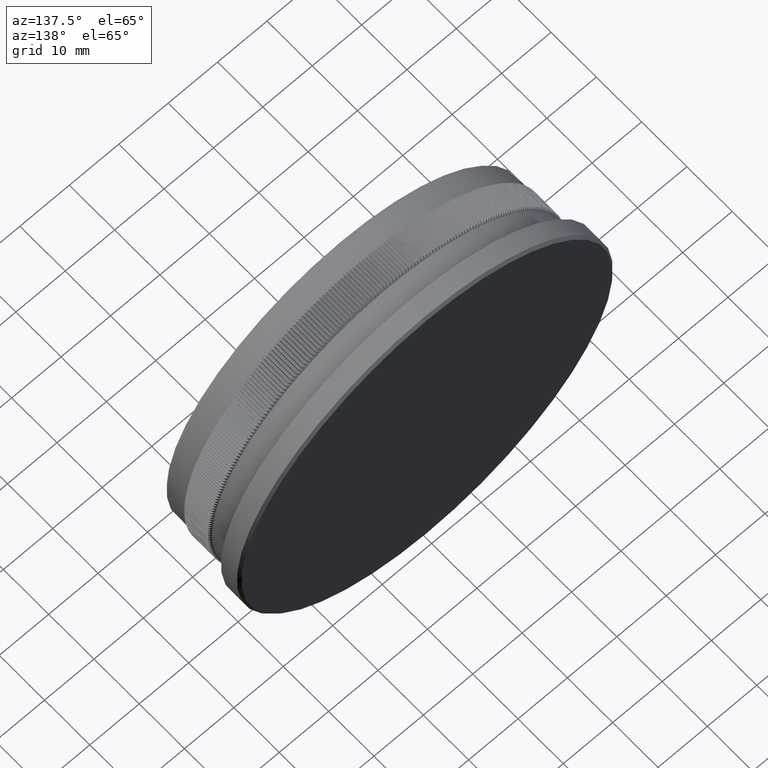
[diagram: clean part render]
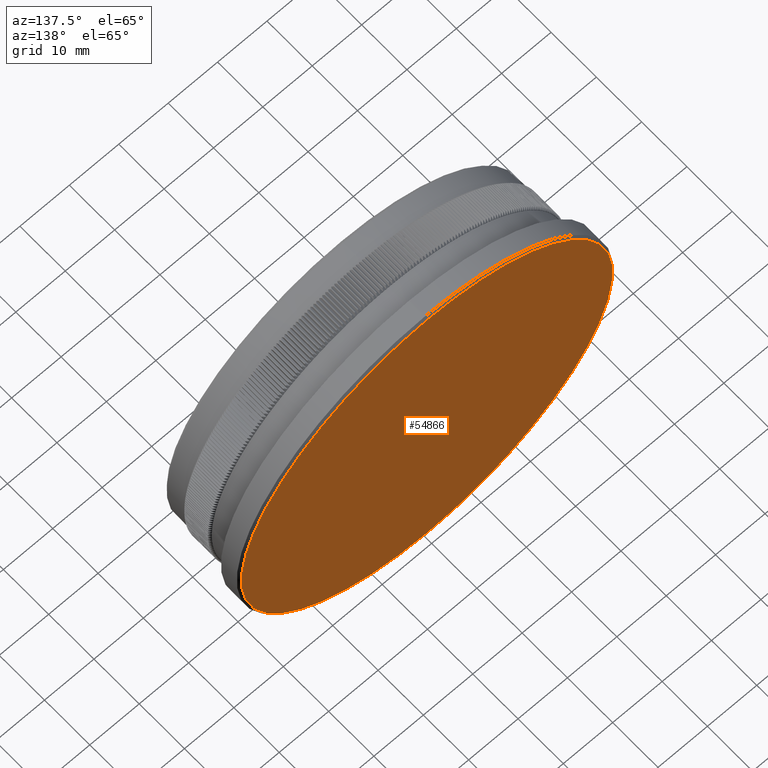
[diagram: same view with one face highlighted and labeled with its STEP entity id]
A machine part, auxiliary view. The second image highlights one B-rep face of the part: STEP entity #54866.
In plain terms, the highlighted planar face has unit normal (0, -1, 0).
Its self-contained STEP definition (entity closure, byte-faithful):
#9667 = CARTESIAN_POINT ( 'NONE',  ( 0.0000000000000000000, 18.99999999999999600, -37.54999999999999700 ) ) ;
#10409 = DIRECTION ( 'NONE',  ( -0.0000000000000000000, 1.000000000000000000, -0.0000000000000000000 ) ) ;
#11892 = VERTEX_POINT ( 'NONE', #9667 ) ;
#17371 = CARTESIAN_POINT ( 'NONE',  ( 0.0000000000000000000, 18.99999999999999600, 0.0000000000000000000 ) ) ;
#18249 = AXIS2_PLACEMENT_3D ( 'NONE', #19457, #48055, #53761 ) ;
#18474 = EDGE_CURVE ( 'NONE', #63677, #11892, #47655, .T. ) ;
#19457 = CARTESIAN_POINT ( 'NONE',  ( 38.04999999999999700, 18.99999999999999600, 0.0000000000000000000 ) ) ;
#27346 = DIRECTION ( 'NONE',  ( -0.0000000000000000000, 1.000000000000000000, -0.0000000000000000000 ) ) ;
#28086 = ORIENTED_EDGE ( 'NONE', *, *, #85386, .T. ) ;
#33955 = DIRECTION ( 'NONE',  ( 0.0000000000000000000, 0.0000000000000000000, -1.000000000000000000 ) ) ;
#34429 = CARTESIAN_POINT ( 'NONE',  ( 4.629164900776995200E-015, 18.99999999999999600, 37.54999999999999700 ) ) ;
#47655 = CIRCLE ( 'NONE', #81746, 37.54999999999999700 ) ;
#48055 = DIRECTION ( 'NONE',  ( 0.0000000000000000000, -1.000000000000000000, 0.0000000000000000000 ) ) ;
#51747 = EDGE_LOOP ( 'NONE', ( #28086, #72443 ) ) ;
#53761 = DIRECTION ( 'NONE',  ( 0.0000000000000000000, -0.0000000000000000000, -1.000000000000000000 ) ) ;
#54866 = ADVANCED_FACE ( 'NONE', ( #74728 ), #61251, .F. ) ;
#58600 = DIRECTION ( 'NONE',  ( 0.0000000000000000000, 0.0000000000000000000, -1.000000000000000000 ) ) ;
#61251 = PLANE ( 'NONE',  #18249 ) ;
#63677 = VERTEX_POINT ( 'NONE', #34429 ) ;
#68855 = CARTESIAN_POINT ( 'NONE',  ( 0.0000000000000000000, 18.99999999999999600, 0.0000000000000000000 ) ) ;
#71732 = AXIS2_PLACEMENT_3D ( 'NONE', #17371, #10409, #58600 ) ;
#72443 = ORIENTED_EDGE ( 'NONE', *, *, #18474, .T. ) ;
#74728 = FACE_OUTER_BOUND ( 'NONE', #51747, .T. ) ;
#81746 = AXIS2_PLACEMENT_3D ( 'NONE', #68855, #27346, #33955 ) ;
#82258 = CIRCLE ( 'NONE', #71732, 37.54999999999999700 ) ;
#85386 = EDGE_CURVE ( 'NONE', #11892, #63677, #82258, .T. ) ;